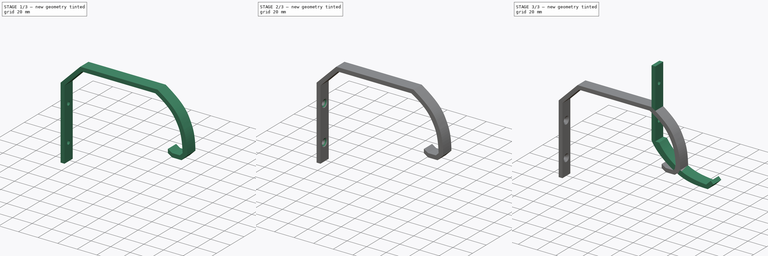
[diagram: build sequence overview — one tinted view per stage of 3, left to right]
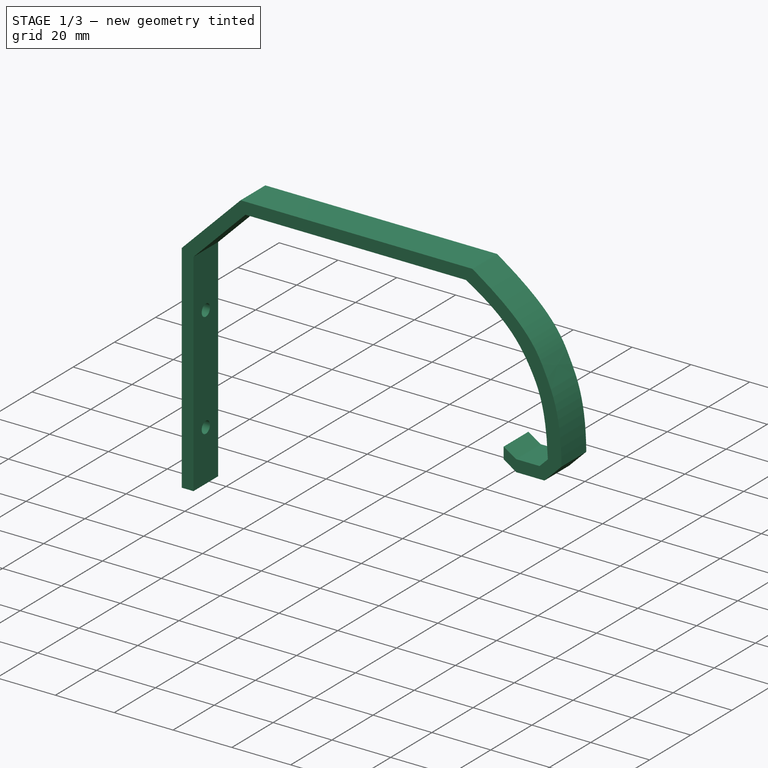
[diagram: stage 1 of 3 — iso view after this stage's code; geometry added in this stage tinted green]
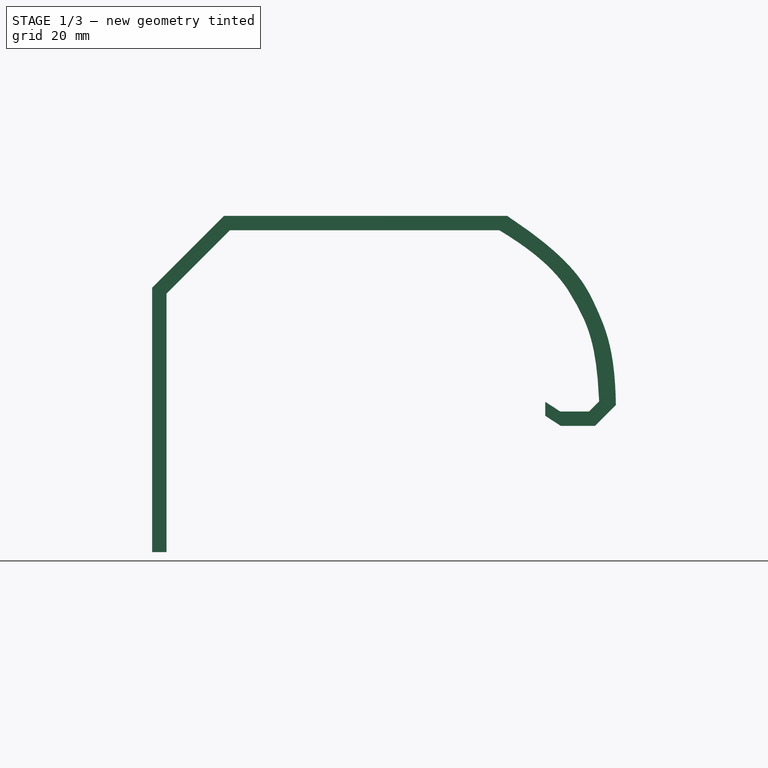
[diagram: stage 1 of 3 — front view after this stage's code; geometry added in this stage tinted green]
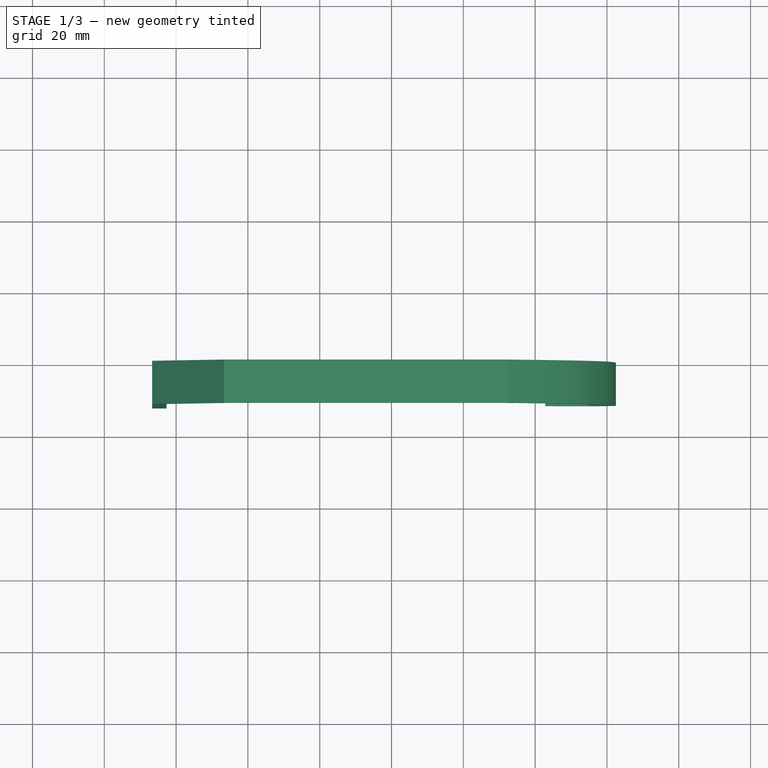
[diagram: stage 1 of 3 — top view after this stage's code; geometry added in this stage tinted green]
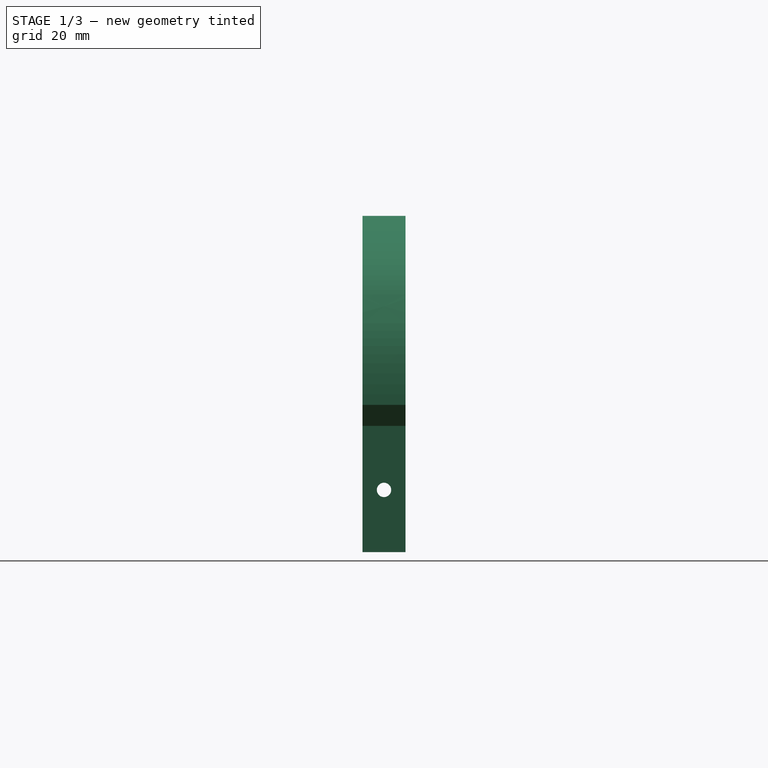
[diagram: stage 1 of 3 — right view after this stage's code; geometry added in this stage tinted green]
FCSTD DOCUMENT  (FreeCAD 0.21R33694 (Git))
Label: Model
License: All rights reserved
LicenseURL: http://en.wikipedia.org/wiki/All_rights_reserved
objects: Sketcher::SketchObject×4, PartDesign::Pad×2, PartDesign::Pocket×2, PartDesign::Body×2, TechDraw::DrawSVGTemplate×1, TechDraw::DrawProjGroupItem×1, TechDraw::DrawProjGroup×1, TechDraw::DrawPage×1, PartDesign::Chamfer×1
note: 16 computed .brp shape members not serialized (recipe doc carries the construction recipe); baked Part::Feature solids carry a one-line shape summary decoded from their .brp

FEATURE [Sketcher::SketchObject] Sketch
  FullyConstrained = false
  MapMode = 5
  Placement = pos=(0,0,0) rot=(1,0,0;1.5708rad)
  Support = -> [XZ_Plane]
  sketch-geometry (35):
    g0-g4: Circle x5 (B-spline internal-alignment scaffolding for g5; pole/knot coordinates omitted)
    g5: BSplineCurve PolesCount=5 KnotsCount=3 Degree=3 IsPeriodic=0
    g6: GeomPoint X=17.8284 Y=7.32843 Z=0
    g7: GeomPoint X=11.7524 Y=33.9528 Z=0
    g8: GeomPoint X=-10 Y=55 Z=0
    g9: LineSegment StartX=-10 StartY=55 StartZ=0 EndX=-85 EndY=55 EndZ=0
    g10: LineSegment StartX=-85 StartY=55 StartZ=0 EndX=-102.678 EndY=37.3223 EndZ=0
    g11: LineSegment StartX=-102.678 StartY=37.3223 StartZ=0 EndX=-102.678 EndY=-34.6777 EndZ=0
    g12: LineSegment StartX=17.8284 StartY=7.32843 StartZ=0 EndX=15 EndY=4.5 EndZ=0
    g13: LineSegment StartX=15 StartY=4.5 StartZ=0 EndX=7 EndY=4.5 EndZ=0
    g14: LineSegment StartX=-102.678 StartY=-34.6777 StartZ=0 EndX=-106.678 EndY=-34.6777 EndZ=0
    g15: LineSegment StartX=-106.678 StartY=-34.6777 StartZ=0 EndX=-106.678 EndY=38.9792 EndZ=0
    g16: LineSegment StartX=-106.678 StartY=38.9792 StartZ=0 EndX=-86.6569 EndY=59 EndZ=0
    g17: LineSegment StartX=-86.6569 StartY=59 StartZ=0 EndX=-7.78996 EndY=59 EndZ=0
    g18: LineSegment StartX=7.13723 StartY=0.5 StartZ=0 EndX=16.6569 EndY=0.5 EndZ=0
    g19: LineSegment StartX=16.6569 StartY=0.5 StartZ=0 EndX=22.4875 EndY=6.33069 EndZ=0
    g20-g24: Circle x5 (B-spline internal-alignment scaffolding for g25; pole/knot coordinates omitted)
    g25: BSplineCurve PolesCount=5 KnotsCount=3 Degree=3 IsPeriodic=0
    g26: GeomPoint X=-7.78996 Y=59 Z=0
    g27: GeomPoint X=16.8386 Y=33.8099 Z=0
    g28: GeomPoint X=22.4875 Y=6.33069 Z=0
    g29: LineSegment StartX=-93.8388 StartY=46.1612 StartZ=0 EndX=-96.6673 EndY=48.9896 EndZ=0
    g30: LineSegment StartX=-47.5 StartY=55 StartZ=0 EndX=-47.5 EndY=59 EndZ=0
    g31: LineSegment StartX=16.4142 StartY=5.91421 StartZ=0 EndX=19.2426 EndY=3.08579 EndZ=0
    g32: LineSegment StartX=7 StartY=4.5 StartZ=0 EndX=2.80266 EndY=7.21705 EndZ=0
    g33: LineSegment StartX=2.80266 StartY=7.21705 StartZ=0 EndX=2.80266 EndY=3.30588 EndZ=0
    g34: LineSegment StartX=7.13723 StartY=0.5 StartZ=0 EndX=2.80266 EndY=3.30588 EndZ=0
  constraints (65):
    c: Weight(g0) = 1
    c: Equal(g0, g1-g4) x4
    c: InternalAlignment(g0-g4 -> g5) x5
    c: InternalAlignment(g6,g5)
    c: InternalAlignment(g7,g5)
    c: InternalAlignment(g8,g5)
    c: DistanceX(g5,g-1) = 10
    c: Coincident(g9,g5)
    c: Horizontal(g9)
    c: DistanceX(g9,g9) = 75
    c: Coincident(g10,g9)
    c: Angle(g10,g9) = 2.35619
    c: Coincident(g11,g10)
    c: Vertical(g11)
    c: DistanceY(g11,g11) = 72
    c: DistanceY(g-1,g5) = 55
    c: Distance(g10) = 25
    c: Coincident(g12,g5)
    c: Angle(g12,g-1) = 2.35619
    c: Distance(g12) = 4
    c: Coincident(g13,g12)
    c: Horizontal(g13)
    c: DistanceX(g13,g13) = 8
    c: DistanceX(g-1,g13) = 7
    c: DistanceY(g-1,g13) = 4.5
    c: Coincident(g11,g14)
    c: Coincident(g14,g15)
    c: Vertical(g15)
    c: Coincident(g15,g16)
    c: Coincident(g16,g17)
    c: Horizontal(g17)
    c: Horizontal(g18)
    c: Coincident(g18,g19)
    c: Weight(g20) = 1
    c: Coincident(g25,g17)
    c: Equal(g20, g21-g24) x4
    c: Coincident(g25,g19)
    c: InternalAlignment(g20-g24 -> g25) x5
    c: InternalAlignment(g26,g25)
    c: InternalAlignment(g27,g25)
    c: InternalAlignment(g28,g25)
    c: Horizontal(g14)
    c: DistanceX(g14,g14) = 4
    c: PointOnObject(g29,g16)
    c: Perpendicular(g29,g10)
    c: Symmetric(g10,g9,g29)
    c: Distance(g29) = 4
    c: Parallel(g10,g16)
    c: PointOnObject(g30,g17)
    c: Perpendicular(g9,g30)
    c: Symmetric(g9,g5,g30)
    c: DistanceY(g30,g30) = 4
    c: DistanceY(g18,g13) = 4
    c: Perpendicular(g31,g12)
    c: Symmetric(g12,g5,g31)
    c: Distance(g31) = 4
    c: PointOnObject(g31,g19)
    c: Parallel(g12,g19)
    c: Coincident(g32,g13)
    c: Distance(g32) = 5
    c: Coincident(g33,g32)
    c: Vertical(g33)
    c: Coincident(g34,g18)
    c: Coincident(g34,g33)
    c: Parallel(g32,g34)
FEATURE [TechDraw::DrawSVGTemplate] Template
  EditableTexts = Designed_by_Name=Designed by Name; Drawing_number=Drawing number; FC-Date=Date; FC-SC=Scale; FC-SH=Sheet; FC-Title=Title; Subtitle=Subtitle; Weight=Weight
  Height = 210
  Orientation = 1
  Template = /Applications/FreeCAD.app/Contents/Resources/share/Mod/TechDraw/Templates/A4_LandscapeTD.svg
  Width = 297
FEATURE [TechDraw::DrawProjGroupItem] ProjItem  label="Front"
  CoarseView = false
  Direction = (0,-1,0)
  Focus = 100
  HardHidden = false
  IsoCount = 0
  IsoHidden = false
  IsoVisible = false
  LockPosition = true
  Perspective = false
  Rotation = 0
  RotationVector = (1,0,1e-06)
  ScaleType = 2
  ScrubCount = 0
  SeamHidden = false
  SeamVisible = false
  SmoothHidden = false
  SmoothVisible = true
  Source = -> [Sketch]
  Type = 0
  X = 0
  XDirection = (1,0,1e-06)
  Y = 0
FEATURE [TechDraw::DrawProjGroup] ProjGroup
  Anchor = -> ProjItem
  AutoDistribute = true
  LockPosition = false
  ProjectionType = 0
  Rotation = 0
  ScaleType = 0
  Source = -> [Sketch]
  Views = -> [ProjItem]
  X = 148.5
  Y = 105
  spacingX = 15
  spacingY = 15
FEATURE [TechDraw::DrawPage] Page
  KeepUpdated = true
  NextBalloonIndex = 1
  ProjectionType = 0
  Template = -> Template
  Views = -> [ProjGroup]
FEATURE [PartDesign::Pad] Pad
  Direction = (0,-1,2e-16)
  Length = 12
  Length2 = 10
  Placement = pos=(0,0,0) rot=(1,0,0;1.5708rad)
  Profile = -> Sketch
  ReferenceAxis = -> Sketch [N_Axis]
  Type = 0
FEATURE [PartDesign::Body] Body001
  Group = -> [Sketch002,Pad001,Sketch003,Pocket]
  Origin = -> Origin001
  Placement = pos=(0,47,0) rot=(0,0,1;0rad)
  Tip = -> Pocket
FEATURE [Sketcher::SketchObject] Sketch004
  ExternalGeometry = -> [Pad]
  FullyConstrained = true
  MapMode = 5
  Placement = pos=(-102.678,0,0) rot=(0.707107,0,0.707107;3.14159rad)
  Support = -> [Pad]
  sketch-geometry (2):
    g0: Circle CenterX=-17.3388 CenterY=6 CenterZ=0 NormalX=0 NormalY=0 NormalZ=1 AngleXU=0 Radius=2
    g1: Circle CenterX=18.6612 CenterY=6 CenterZ=0 NormalX=0 NormalY=0 NormalZ=1 AngleXU=0 Radius=2
  constraints (4):
    c: Diameter(g0) = 4
    c: Equal(g0,g1)
    c: Symmetric(g-3,g-1,g0)
    c: Symmetric(g-1,g-4,g1)
FEATURE [PartDesign::Pocket] Pocket001
  BaseFeature = -> Pad
  Direction = (-1,0,2e-16)
  Length = 5
  Length2 = 5
  Placement = pos=(0,0,0) rot=(1,0,0;1.5708rad)
  Profile = -> Sketch004
  ReferenceAxis = -> Sketch004 [N_Axis]
  Type = 2
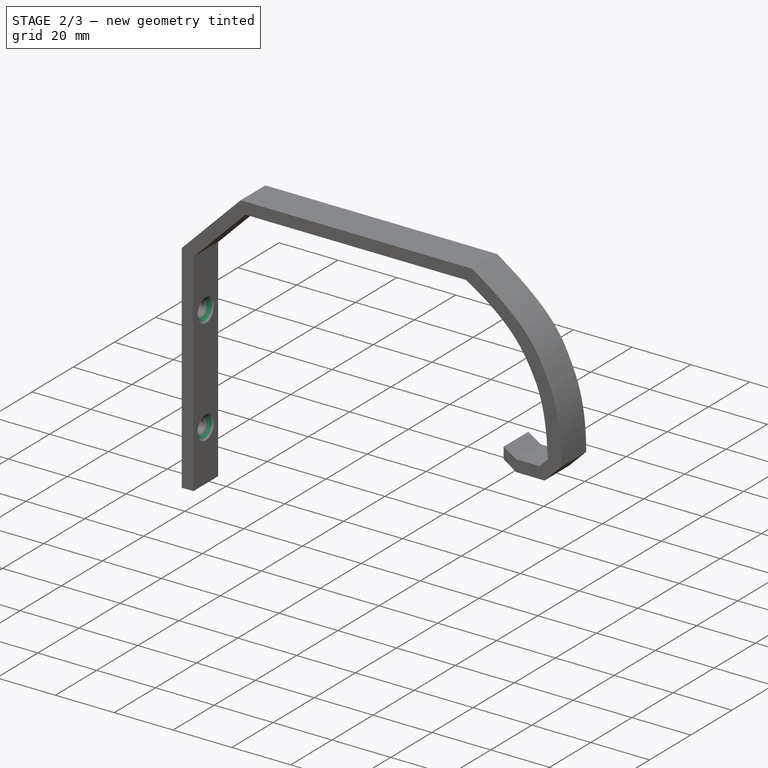
[diagram: stage 2 of 3 — iso view after this stage's code; geometry added in this stage tinted green]
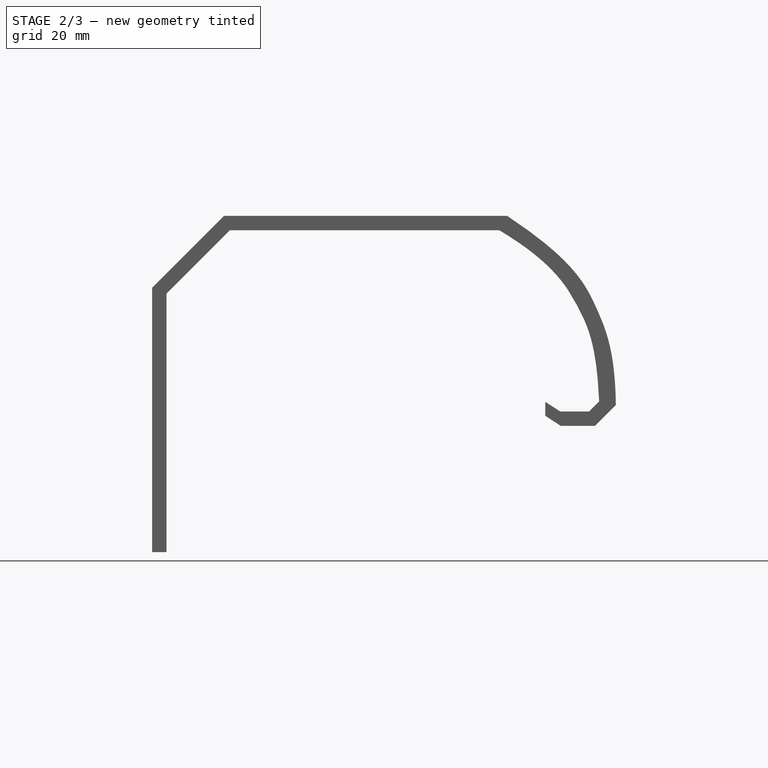
[diagram: stage 2 of 3 — front view after this stage's code; geometry added in this stage tinted green]
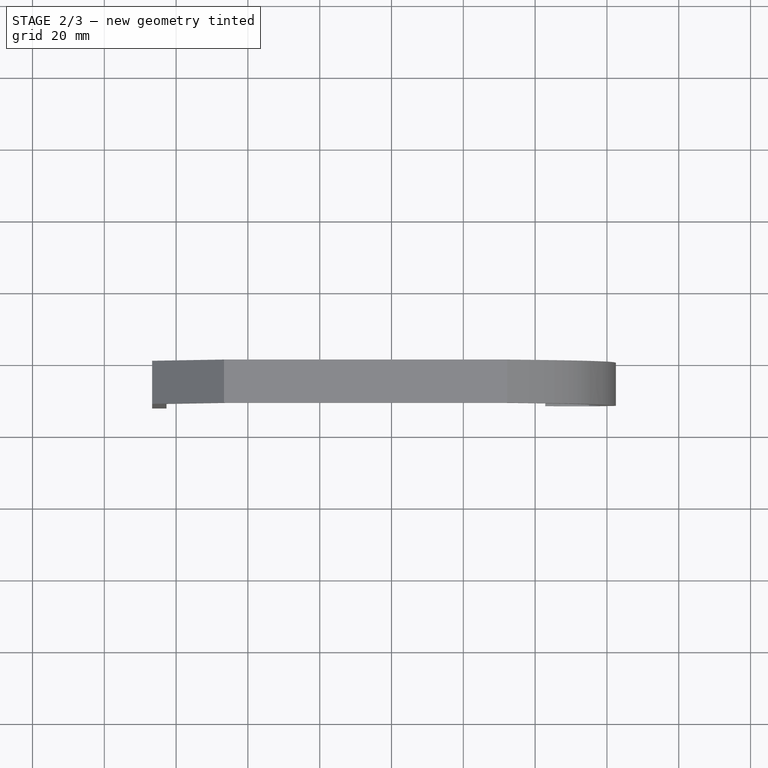
[diagram: stage 2 of 3 — top view after this stage's code; geometry added in this stage tinted green]
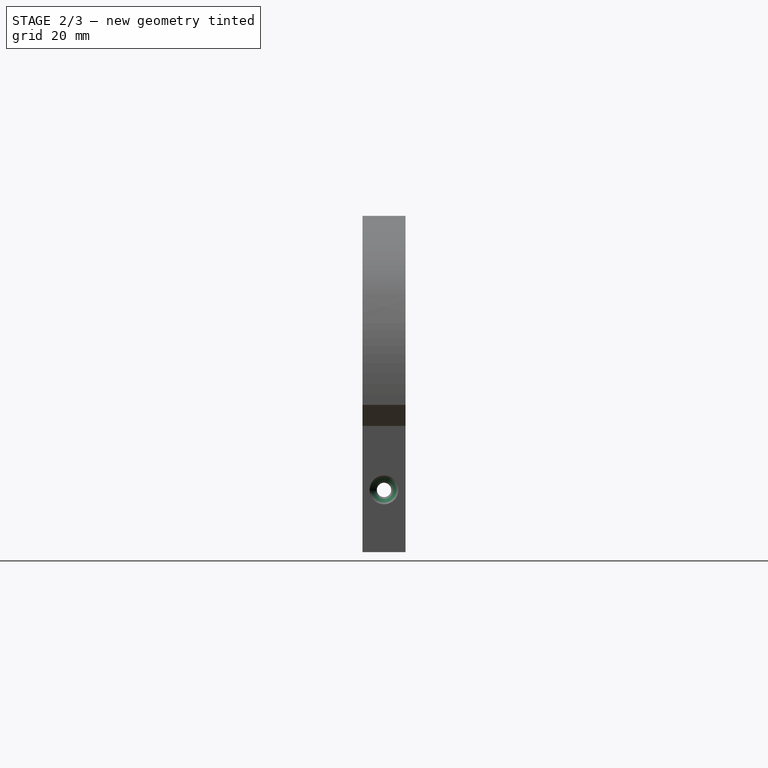
[diagram: stage 2 of 3 — right view after this stage's code; geometry added in this stage tinted green]
FEATURE [PartDesign::Chamfer] Chamfer
  Angle = 45
  Base = -> Pocket001 [Edge42,Edge43]
  BaseFeature = -> Pocket001
  ChamferType = 0
  FlipDirection = false
  Placement = pos=(0,0,0) rot=(1,0,0;1.5708rad)
  Size = 2
  Size2 = 1
  SupportTransform = false
  UseAllEdges = false
FEATURE [PartDesign::Body] Body
  Group = -> [Sketch,Pad,Sketch004,Pocket001,Chamfer]
  Origin = -> Origin
  Tip = -> Chamfer
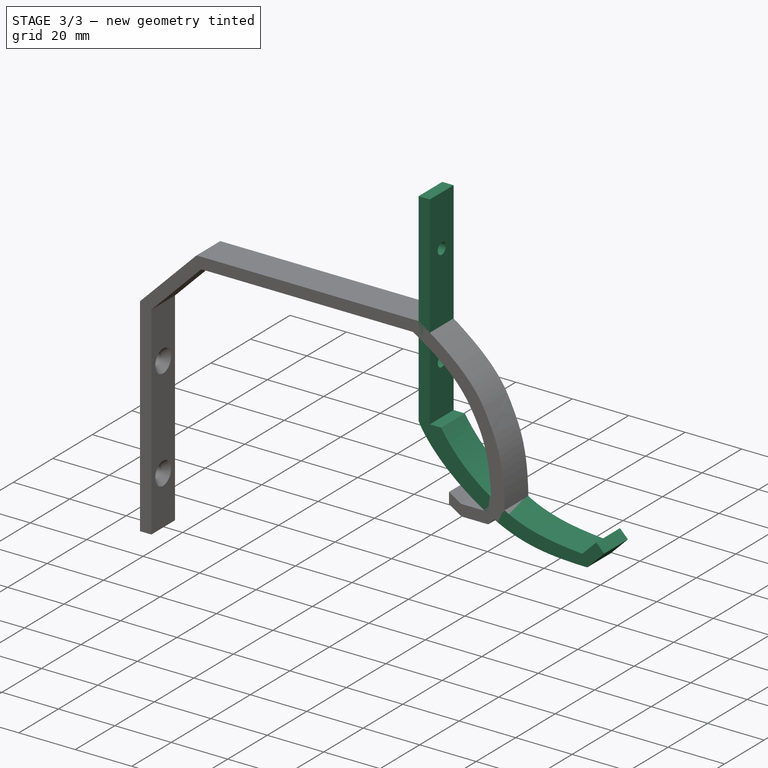
[diagram: stage 3 of 3 — iso view after this stage's code; geometry added in this stage tinted green]
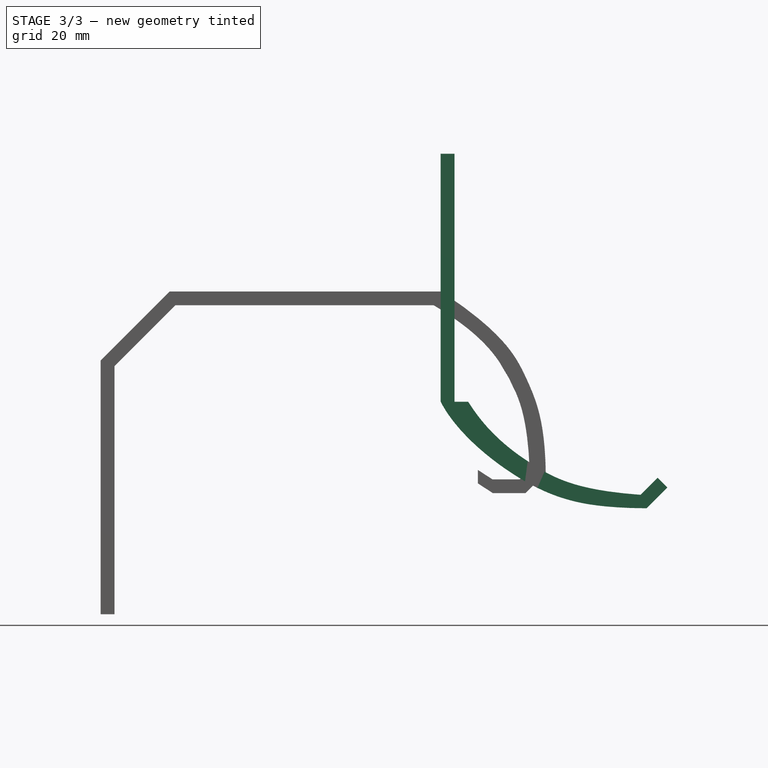
[diagram: stage 3 of 3 — front view after this stage's code; geometry added in this stage tinted green]
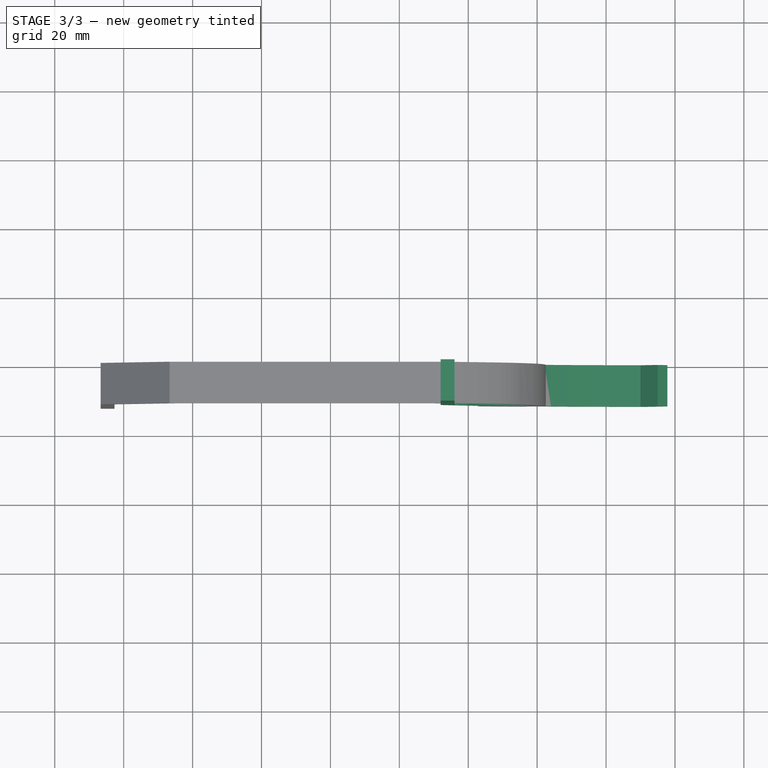
[diagram: stage 3 of 3 — top view after this stage's code; geometry added in this stage tinted green]
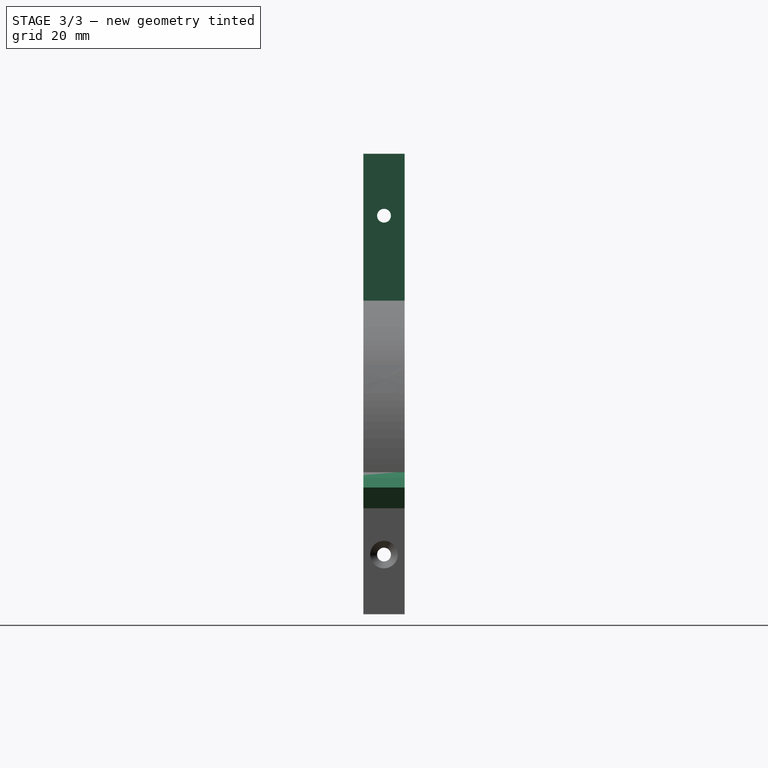
[diagram: stage 3 of 3 — right view after this stage's code; geometry added in this stage tinted green]
FEATURE [Sketcher::SketchObject] Sketch002
  FullyConstrained = false
  MapMode = 5
  Placement = pos=(0,0,0) rot=(1,0,0;1.5708rad)
  Support = -> [XZ_Plane001]
  sketch-geometry (29):
    g0: LineSegment StartX=0 StartY=0 StartZ=0 EndX=0 EndY=27 EndZ=0
    g1: LineSegment StartX=0 StartY=0 StartZ=0 EndX=50 EndY=0 EndZ=0
    g2: LineSegment StartX=50 StartY=0 StartZ=0 EndX=54.9497 EndY=4.94975 EndZ=0
    g3-g7: Circle x5 (B-spline internal-alignment scaffolding for g8; pole/knot coordinates omitted)
    g8: BSplineCurve PolesCount=5 KnotsCount=3 Degree=3 IsPeriodic=0
    g9: GeomPoint X=0 Y=27 Z=0
    g10: GeomPoint X=18.8279 Y=8.72045 Z=0
    g11: GeomPoint X=50 Y=0 Z=0
    g12: LineSegment StartX=54.9497 StartY=4.94975 StartZ=0 EndX=57.7782 EndY=2.12132 EndZ=0
    g13: LineSegment StartX=57.7782 StartY=2.12132 StartZ=0 EndX=51.7758 EndY=-3.88103 EndZ=0
    g14-g19: Circle x6 (B-spline internal-alignment scaffolding for g20; pole/knot coordinates omitted)
    g20: BSplineCurve PolesCount=6 KnotsCount=4 Degree=3 IsPeriodic=0
    g21-g24: GeomPoint x4 (B-spline internal-alignment scaffolding for g20; pole/knot coordinates omitted)
    g25: LineSegment StartX=0 StartY=27 StartZ=0 EndX=-4 EndY=27 EndZ=0
    g26: LineSegment StartX=-4 StartY=27 StartZ=0 EndX=-4 EndY=99 EndZ=0
    g27: LineSegment StartX=-8 StartY=27 StartZ=0 EndX=-8 EndY=99 EndZ=0
    g28: LineSegment StartX=-8 StartY=99 StartZ=0 EndX=-4 EndY=99 EndZ=0
  constraints (42):
    c: Coincident(g0,g-1)
    c: PointOnObject(g0,g-2)
    c: Coincident(g1,g0)
    c: PointOnObject(g1,g-1)
    c: DistanceY(g0,g0) = 27
    c: DistanceX(g1,g1) = 50
    c: Coincident(g2,g1)
    c: Angle(g2,g-1) = 2.35619
    c: Distance(g2) = 7
    c: Weight(g3) = 1
    c: Equal(g3, g4-g7) x4
    c: Coincident(g8,g2)
    c: InternalAlignment(g3-g7 -> g8) x5
    c: InternalAlignment(g9,g8)
    c: InternalAlignment(g10,g8)
    c: InternalAlignment(g11,g8)
    c: Coincident(g12,g2)
    c: Coincident(g13,g12)
    c: Perpendicular(g12,g2)
    c: Perpendicular(g13,g12)
    c: Distance(g12) = 4
    c: Weight(g14) = 1
    c: Equal(g14, g15-g18) x4
    c: Coincident(g18,g13)
    c: Equal(g14,g19)
    c: Coincident(g20,g13)
    c: InternalAlignment(g14-g19 -> g20) x6
    c: InternalAlignment(g21-g24 -> g20) x4
    c: Coincident(g25,g8)
    c: Horizontal(g25)
    c: DistanceX(g25,g25) = 4
    c: Coincident(g3,g0)
    c: Coincident(g26,g25)
    c: Vertical(g26)
    c: Horizontal(g25,g20)
    c: DistanceX(g20,g25) = 4
    c: Coincident(g27,g20)
    c: Vertical(g27)
    c: DistanceY(g27,g27) = 72
    c: Coincident(g28,g27)
    c: Coincident(g28,g26)
    c: Equal(g27,g26)
FEATURE [PartDesign::Pad] Pad001
  Direction = (0,-1,2e-16)
  Length = 12
  Length2 = 10
  Placement = pos=(0,0,0) rot=(1,0,0;1.5708rad)
  Profile = -> Sketch002
  ReferenceAxis = -> Sketch002 [N_Axis]
  Type = 0
FEATURE [Sketcher::SketchObject] Sketch003
  ExternalGeometry = -> [Pad001]
  FullyConstrained = true
  MapMode = 5
  Placement = pos=(-4,0,0) rot=(0.707107,0,0.707107;3.14159rad)
  Support = -> [Pad001]
  sketch-geometry (3):
    g0: Circle CenterX=81 CenterY=6 CenterZ=0 NormalX=0 NormalY=0 NormalZ=1 AngleXU=0 Radius=2
    g1: LineSegment StartX=63 StartY=-1.4e-14 StartZ=0 EndX=63 EndY=12 EndZ=0
    g2: Circle CenterX=45 CenterY=6 CenterZ=0 NormalX=0 NormalY=0 NormalZ=1 AngleXU=0 Radius=2
  constraints (7):
    c: Diameter(g0) = 4
    c: Vertical(g1)
    c: PointOnObject(g1,g-5)
    c: Equal(g2,g0)
    c: Symmetric(g-4,g1,g2)
    c: Symmetric(g1,g-5,g0)
    c: Symmetric(g-3,g-4,g1)
FEATURE [PartDesign::Pocket] Pocket
  BaseFeature = -> Pad001
  Direction = (-1,0,2e-16)
  Length = 5
  Length2 = 5
  Placement = pos=(0,0,0) rot=(1,0,0;1.5708rad)
  Profile = -> Sketch003
  ReferenceAxis = -> Sketch003 [N_Axis]
  Type = 2
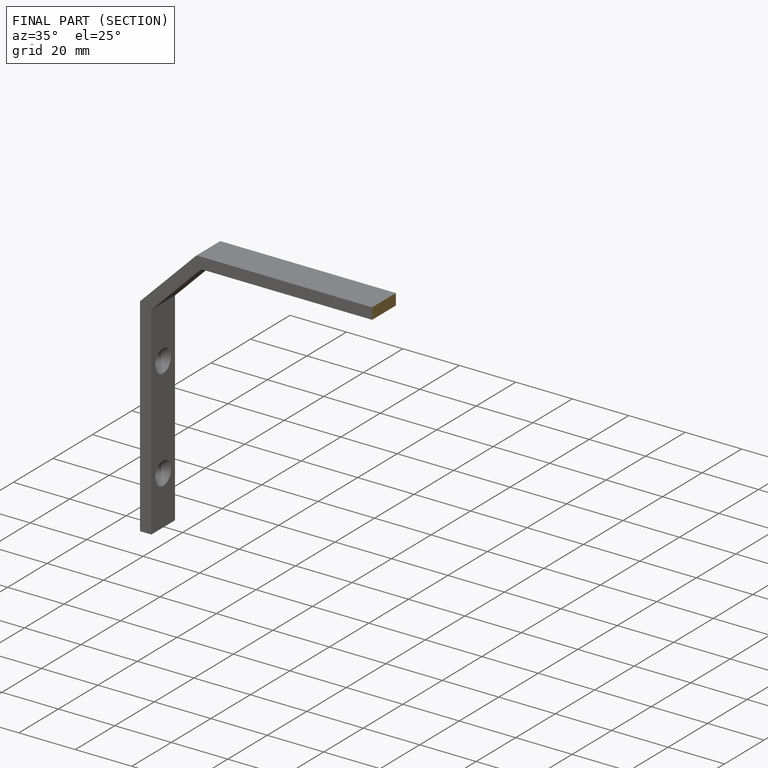
[diagram: finished part — half-section view (interior)]
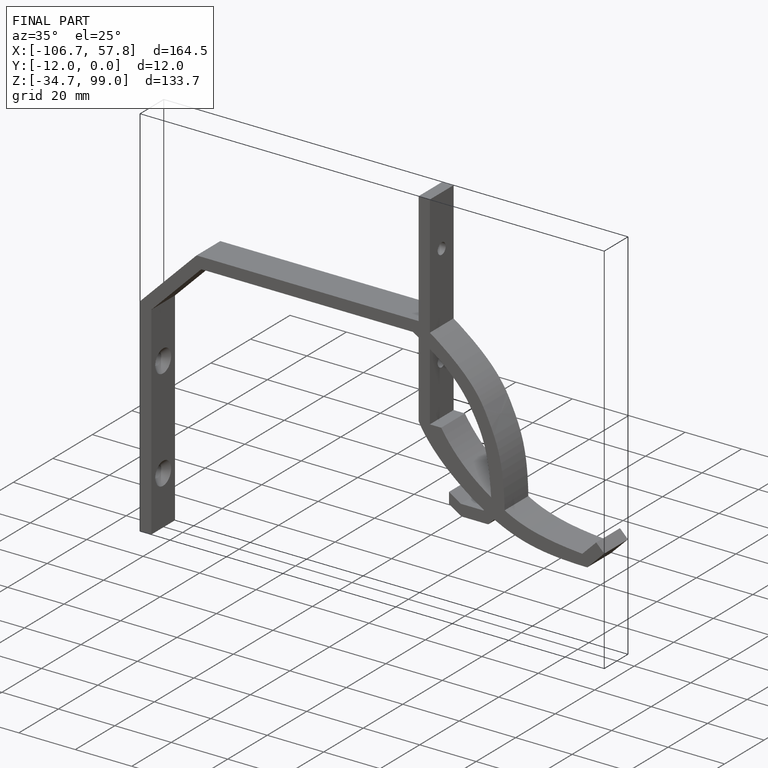
[diagram: finished part — iso view with bounding-box wireframe]
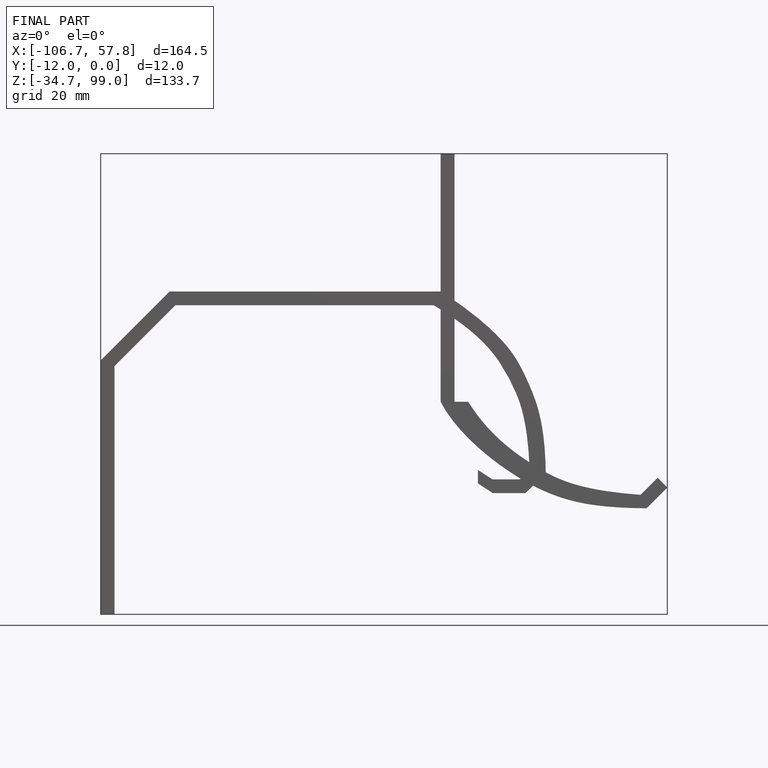
[diagram: finished part — front view with bounding-box wireframe]
